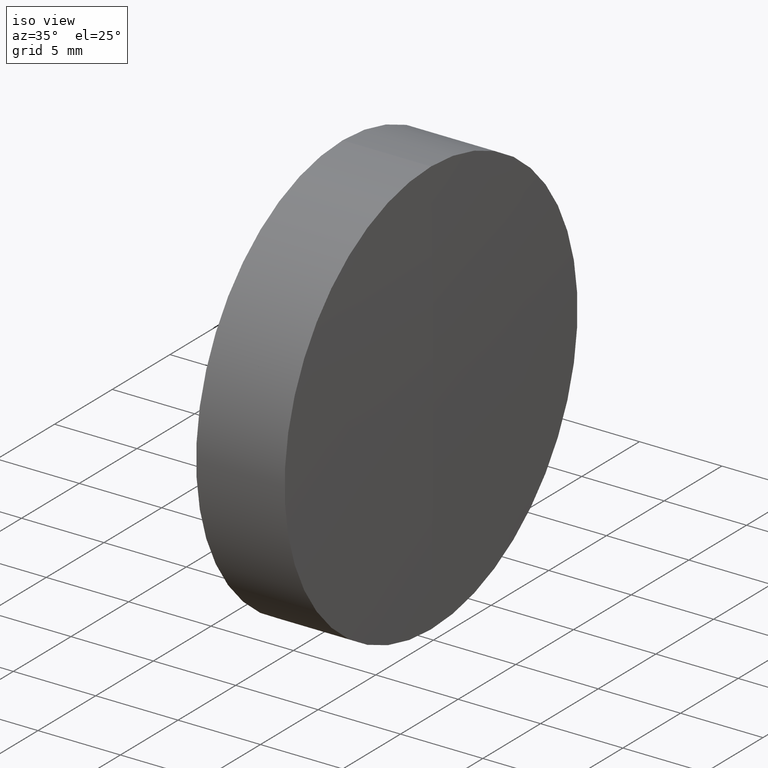
[diagram: clean part render]
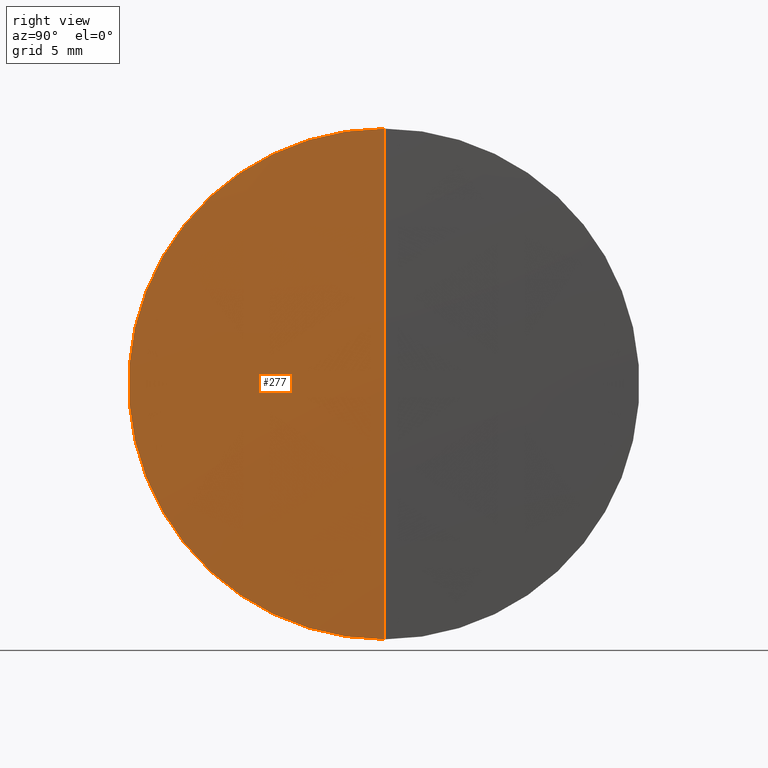
[diagram: tour spotlight — one face highlighted and labeled with its STEP entity id]
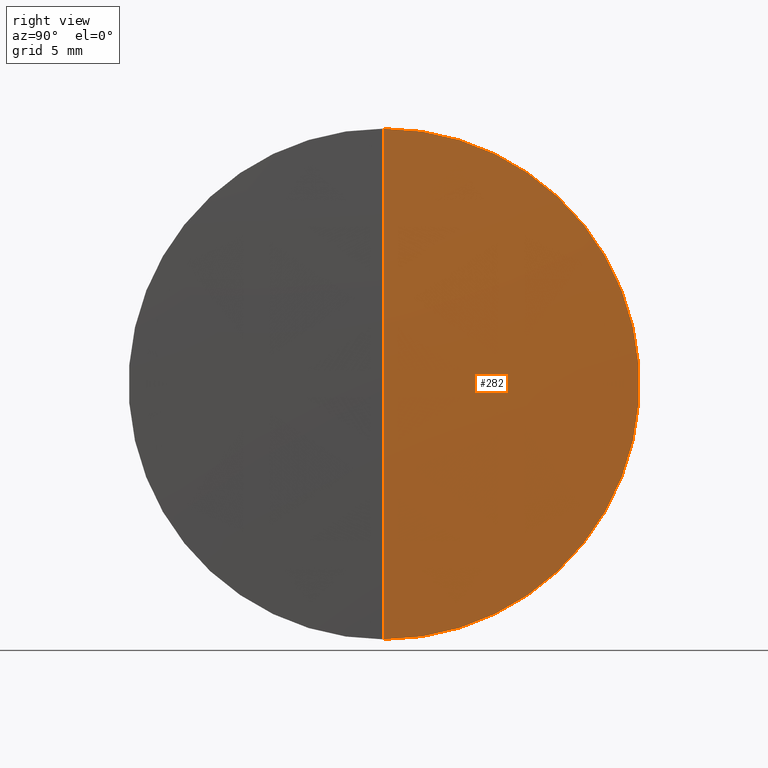
[diagram: tour spotlight — one face highlighted and labeled with its STEP entity id]
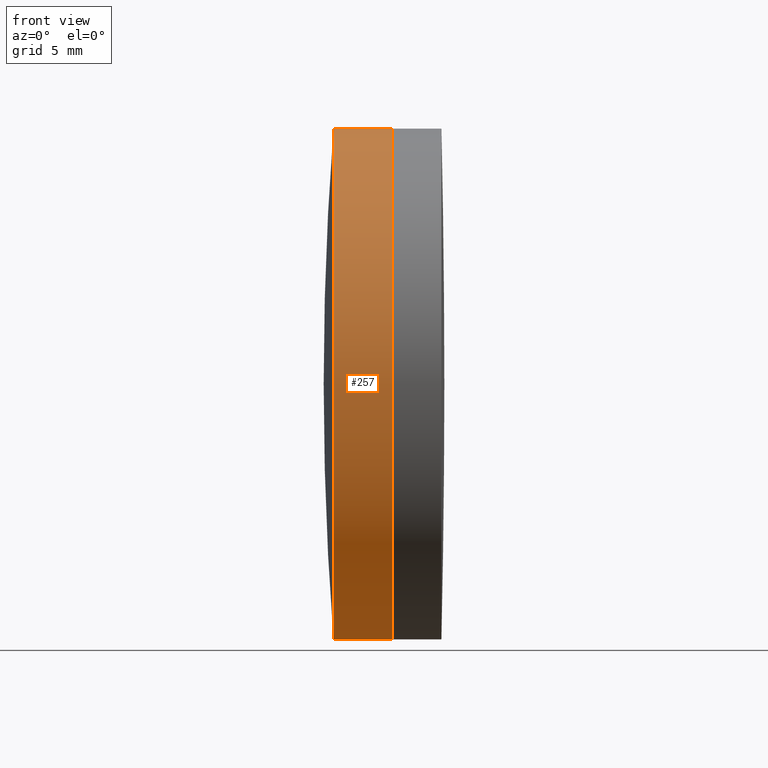
[diagram: tour spotlight — one face highlighted and labeled with its STEP entity id]
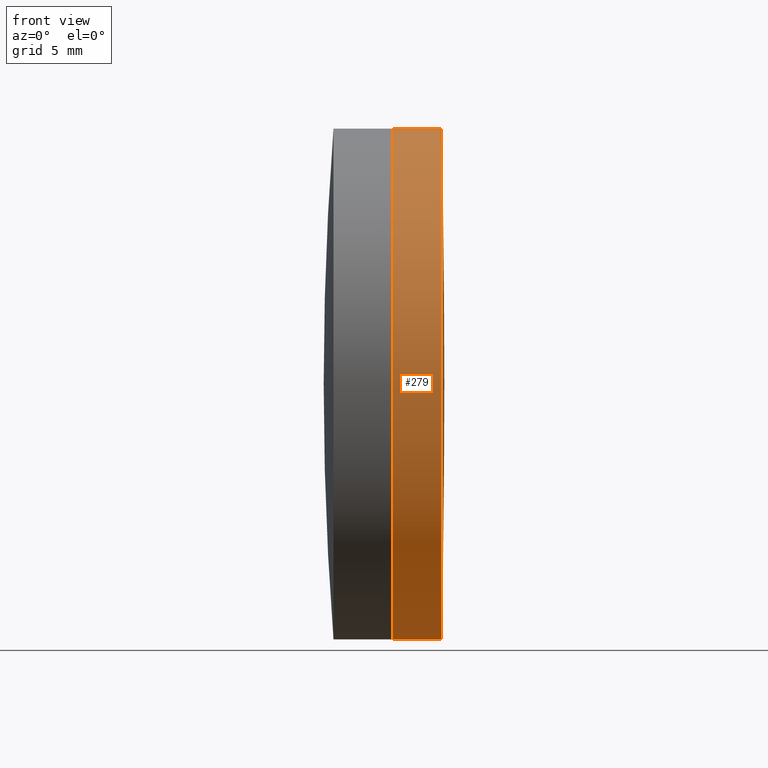
[diagram: tour spotlight — one face highlighted and labeled with its STEP entity id]
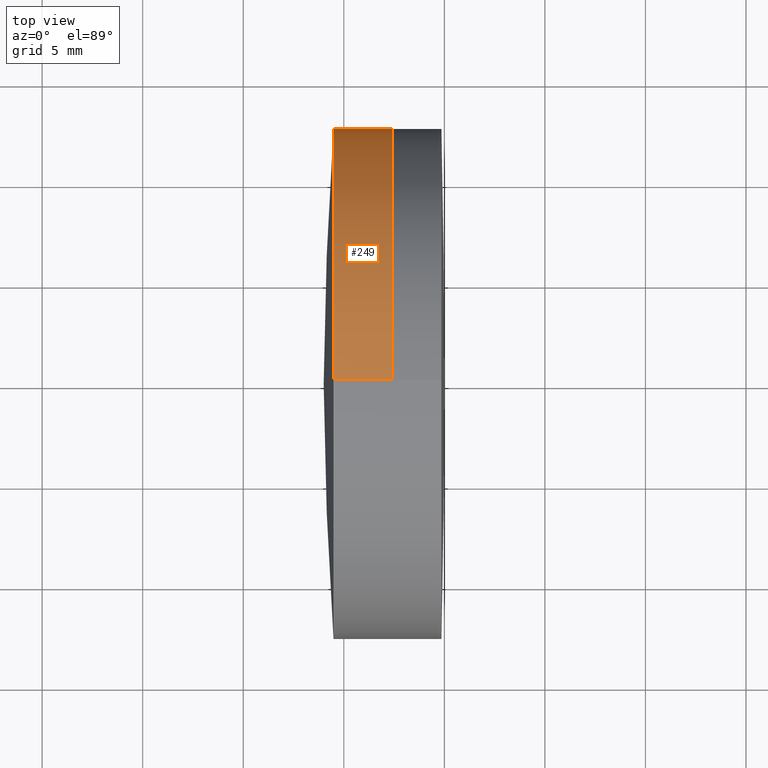
[diagram: tour spotlight — one face highlighted and labeled with its STEP entity id]
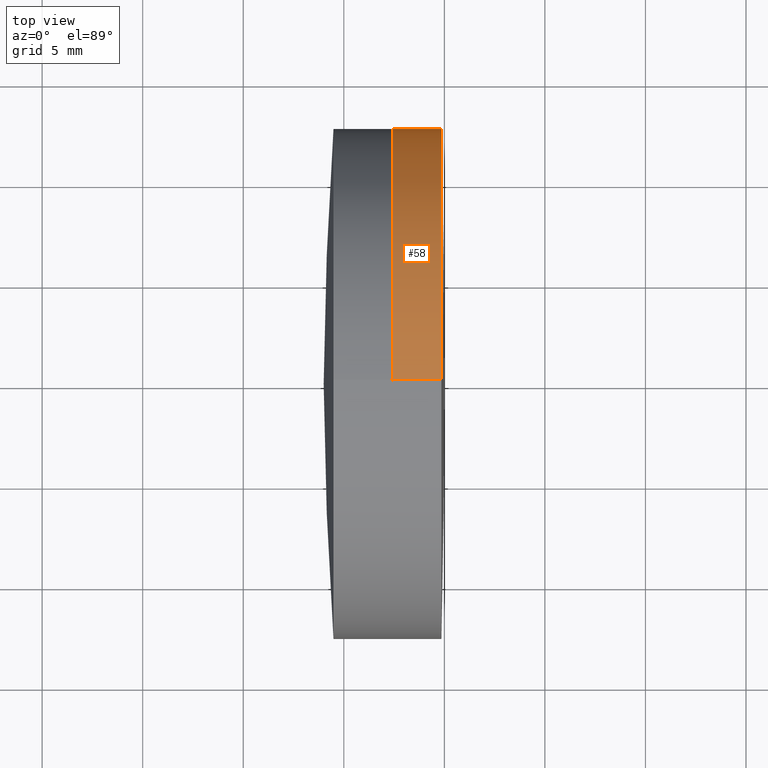
[diagram: tour spotlight — one face highlighted and labeled with its STEP entity id]
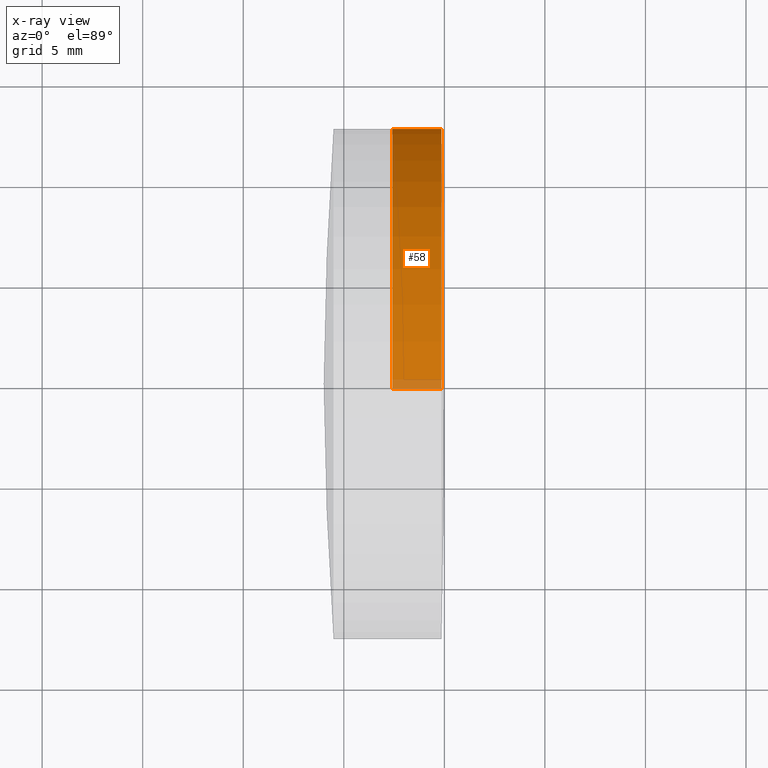
[diagram: x-ray of the same camera — body ghosted, this tour face saturated]
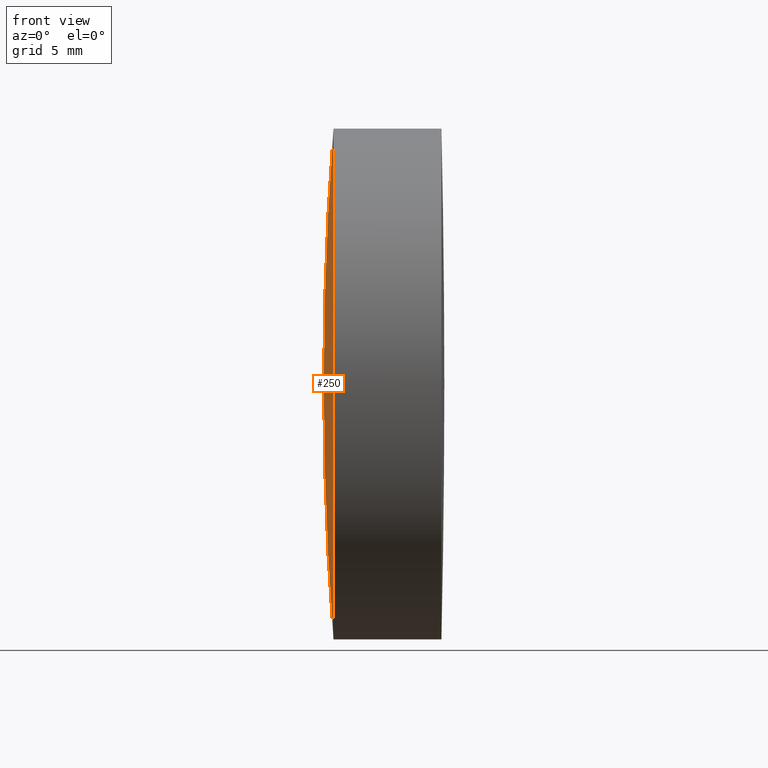
[diagram: tour spotlight — one face highlighted and labeled with its STEP entity id]
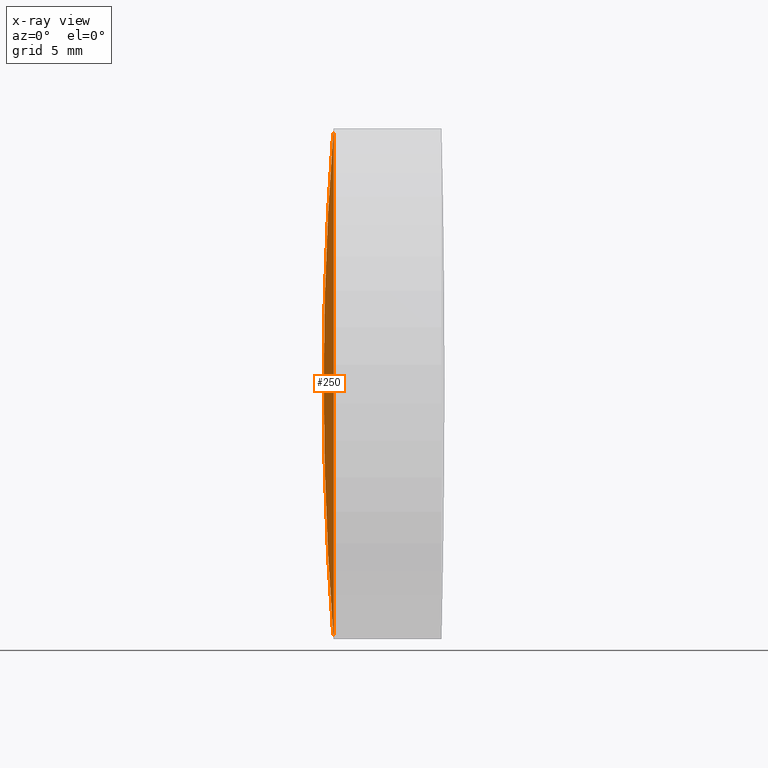
[diagram: x-ray of the same camera — body ghosted, this tour face saturated]
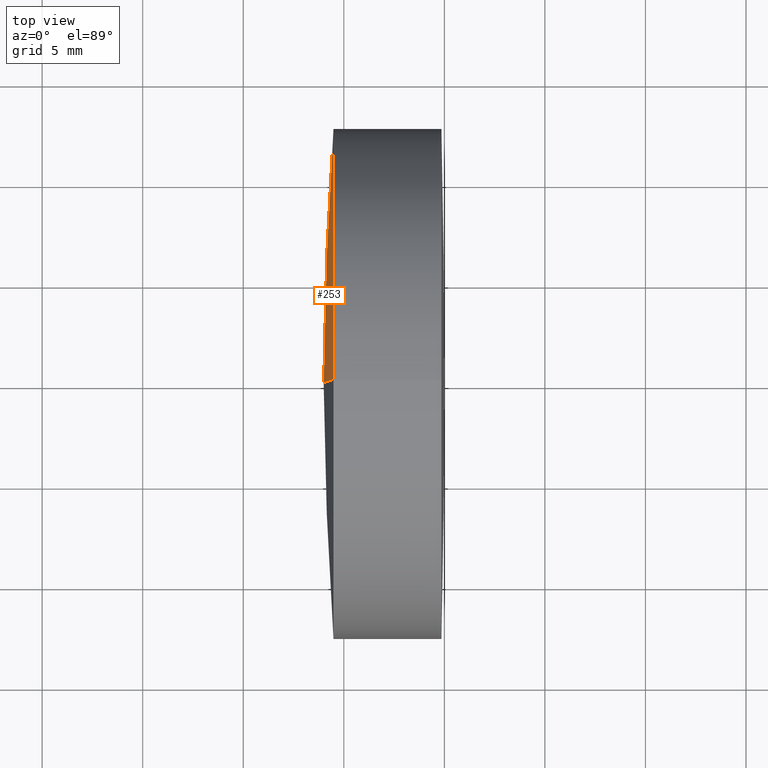
[diagram: tour spotlight — one face highlighted and labeled with its STEP entity id]
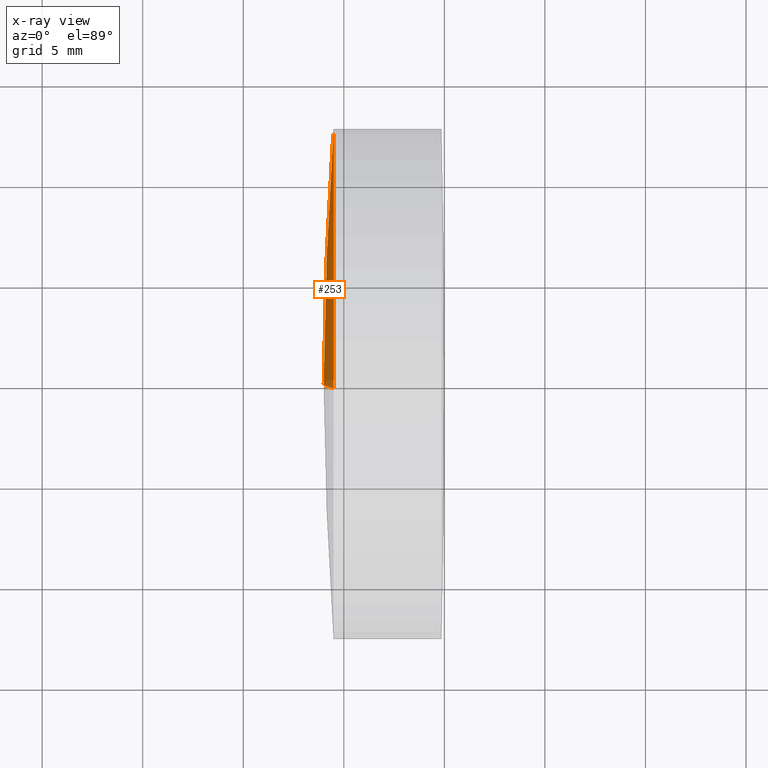
[diagram: x-ray of the same camera — body ghosted, this tour face saturated]
A machine part: a face-by-face anatomy tour. The part has 12 B-rep faces; the first image is the clean iso view, then the 8 largest visible faces are spotlighted one at a time (largest first), each with its STEP entity span.

Face 1 — right view, entity #277. In plain terms, the highlighted spherical surface has radius 557.4 mm.
Definition (entity closure, byte-faithful):
#46 = DIRECTION ( 'NONE',  ( 0.0000000000000000000, 0.0000000000000000000, 1.000000000000000000 ) ) ;
#48 = CARTESIAN_POINT ( 'NONE',  ( -237.4005524568976900, 0.0000000000000000000, 0.0000000000000000000 ) ) ;
#55 = VERTEX_POINT ( 'NONE', #333 ) ;
#59 = CIRCLE ( 'NONE', #263, 557.3999999999999800 ) ;
#63 = AXIS2_PLACEMENT_3D ( 'NONE', #48, #310, #204 ) ;
#84 = ORIENTED_EDGE ( 'NONE', *, *, #148, .F. ) ;
#93 = CARTESIAN_POINT ( 'NONE',  ( 319.8547481011140700, 0.0000000000000000000, 12.69999999999996600 ) ) ;
#101 = ORIENTED_EDGE ( 'NONE', *, *, #110, .T. ) ;
#110 = EDGE_CURVE ( 'NONE', #123, #234, #59, .T. ) ;
#123 = VERTEX_POINT ( 'NONE', #205 ) ;
#148 = EDGE_CURVE ( 'NONE', #123, #55, #181, .T. ) ;
#170 = EDGE_CURVE ( 'NONE', #55, #234, #260, .T. ) ;
#181 = CIRCLE ( 'NONE', #222, 557.3999999999999800 ) ;
#184 = DIRECTION ( 'NONE',  ( 0.0000000000000000000, -1.000000000000000000, 0.0000000000000000000 ) ) ;
#204 = DIRECTION ( 'NONE',  ( 0.0000000000000000000, 0.0000000000000000000, 1.000000000000000000 ) ) ;
#205 = CARTESIAN_POINT ( 'NONE',  ( 319.9994475431023500, 0.0000000000000000000, 3.413090629223673800E-014 ) ) ;
#212 = FACE_OUTER_BOUND ( 'NONE', #237, .T. ) ;
#218 = DIRECTION ( 'NONE',  ( -1.000000000000000000, -0.0000000000000000000, -0.0000000000000000000 ) ) ;
#222 = AXIS2_PLACEMENT_3D ( 'NONE', #319, #291, #238 ) ;
#234 = VERTEX_POINT ( 'NONE', #93 ) ;
#237 = EDGE_LOOP ( 'NONE', ( #84, #101, #264 ) ) ;
#238 = DIRECTION ( 'NONE',  ( 0.0000000000000000000, -1.224646799147353500E-016, 1.000000000000000000 ) ) ;
#260 = CIRCLE ( 'NONE', #329, 12.69999999999996600 ) ;
#263 = AXIS2_PLACEMENT_3D ( 'NONE', #286, #184, #312 ) ;
#264 = ORIENTED_EDGE ( 'NONE', *, *, #170, .F. ) ;
#269 = CARTESIAN_POINT ( 'NONE',  ( 319.8547481011140700, 0.0000000000000000000, 0.0000000000000000000 ) ) ;
#277 = ADVANCED_FACE ( 'NONE', ( #212 ), #306, .T. ) ;
#286 = CARTESIAN_POINT ( 'NONE',  ( -237.4005524568976900, 0.0000000000000000000, 0.0000000000000000000 ) ) ;
#291 = DIRECTION ( 'NONE',  ( -0.0000000000000000000, 1.000000000000000000, 1.224646799147353200E-016 ) ) ;
#306 = SPHERICAL_SURFACE ( 'NONE', #63, 557.3999999999999800 ) ;
#310 = DIRECTION ( 'NONE',  ( 0.0000000000000000000, 1.000000000000000000, 0.0000000000000000000 ) ) ;
#312 = DIRECTION ( 'NONE',  ( 0.0000000000000000000, 0.0000000000000000000, -1.000000000000000000 ) ) ;
#319 = CARTESIAN_POINT ( 'NONE',  ( -237.4005524568976900, 0.0000000000000000000, 0.0000000000000000000 ) ) ;
#329 = AXIS2_PLACEMENT_3D ( 'NONE', #269, #218, #46 ) ;
#333 = CARTESIAN_POINT ( 'NONE',  ( 319.8547481011140700, 1.555301434917136500E-015, -12.69999999999996600 ) ) ;

Face 2 — right view, entity #282. In plain terms, the highlighted spherical surface has radius 557.4 mm.
Definition (entity closure, byte-faithful):
#1 = DIRECTION ( 'NONE',  ( 0.0000000000000000000, 0.0000000000000000000, 1.000000000000000000 ) ) ;
#34 = ORIENTED_EDGE ( 'NONE', *, *, #148, .T. ) ;
#55 = VERTEX_POINT ( 'NONE', #333 ) ;
#59 = CIRCLE ( 'NONE', #263, 557.3999999999999800 ) ;
#65 = ORIENTED_EDGE ( 'NONE', *, *, #110, .F. ) ;
#67 = DIRECTION ( 'NONE',  ( 0.0000000000000000000, 1.000000000000000000, 0.0000000000000000000 ) ) ;
#82 = CIRCLE ( 'NONE', #298, 12.69999999999996600 ) ;
#83 = AXIS2_PLACEMENT_3D ( 'NONE', #256, #67, #1 ) ;
#93 = CARTESIAN_POINT ( 'NONE',  ( 319.8547481011140700, 0.0000000000000000000, 12.69999999999996600 ) ) ;
#97 = FACE_OUTER_BOUND ( 'NONE', #288, .T. ) ;
#110 = EDGE_CURVE ( 'NONE', #123, #234, #59, .T. ) ;
#123 = VERTEX_POINT ( 'NONE', #205 ) ;
#148 = EDGE_CURVE ( 'NONE', #123, #55, #181, .T. ) ;
#158 = SPHERICAL_SURFACE ( 'NONE', #83, 557.3999999999999800 ) ;
#181 = CIRCLE ( 'NONE', #222, 557.3999999999999800 ) ;
#184 = DIRECTION ( 'NONE',  ( 0.0000000000000000000, -1.000000000000000000, 0.0000000000000000000 ) ) ;
#194 = ORIENTED_EDGE ( 'NONE', *, *, #225, .F. ) ;
#205 = CARTESIAN_POINT ( 'NONE',  ( 319.9994475431023500, 0.0000000000000000000, 3.413090629223673800E-014 ) ) ;
#222 = AXIS2_PLACEMENT_3D ( 'NONE', #319, #291, #238 ) ;
#225 = EDGE_CURVE ( 'NONE', #234, #55, #82, .T. ) ;
#232 = DIRECTION ( 'NONE',  ( -1.000000000000000000, -0.0000000000000000000, -0.0000000000000000000 ) ) ;
#234 = VERTEX_POINT ( 'NONE', #93 ) ;
#238 = DIRECTION ( 'NONE',  ( 0.0000000000000000000, -1.224646799147353500E-016, 1.000000000000000000 ) ) ;
#256 = CARTESIAN_POINT ( 'NONE',  ( -237.4005524568976900, 0.0000000000000000000, 0.0000000000000000000 ) ) ;
#263 = AXIS2_PLACEMENT_3D ( 'NONE', #286, #184, #312 ) ;
#282 = ADVANCED_FACE ( 'NONE', ( #97 ), #158, .T. ) ;
#286 = CARTESIAN_POINT ( 'NONE',  ( -237.4005524568976900, 0.0000000000000000000, 0.0000000000000000000 ) ) ;
#287 = CARTESIAN_POINT ( 'NONE',  ( 319.8547481011140700, 0.0000000000000000000, 0.0000000000000000000 ) ) ;
#288 = EDGE_LOOP ( 'NONE', ( #65, #34, #194 ) ) ;
#291 = DIRECTION ( 'NONE',  ( -0.0000000000000000000, 1.000000000000000000, 1.224646799147353200E-016 ) ) ;
#298 = AXIS2_PLACEMENT_3D ( 'NONE', #287, #232, #346 ) ;
#312 = DIRECTION ( 'NONE',  ( 0.0000000000000000000, 0.0000000000000000000, -1.000000000000000000 ) ) ;
#319 = CARTESIAN_POINT ( 'NONE',  ( -237.4005524568976900, 0.0000000000000000000, 0.0000000000000000000 ) ) ;
#333 = CARTESIAN_POINT ( 'NONE',  ( 319.8547481011140700, 1.555301434917136500E-015, -12.69999999999996600 ) ) ;
#346 = DIRECTION ( 'NONE',  ( 0.0000000000000000000, 0.0000000000000000000, 1.000000000000000000 ) ) ;

Face 3 — front view, entity #257. In plain terms, the highlighted cylindrical surface (partial cylindrical patch) has radius 12.7 mm, axis along (-1, -0, -0).
Definition (entity closure, byte-faithful):
#2 = VERTEX_POINT ( 'NONE', #15 ) ;
#5 = CYLINDRICAL_SURFACE ( 'NONE', #127, 12.69999999999999800 ) ;
#11 = EDGE_CURVE ( 'NONE', #280, #38, #28, .T. ) ;
#15 = CARTESIAN_POINT ( 'NONE',  ( 314.4883368067589200, 1.555301434917141800E-015, -12.70000000000002800 ) ) ;
#22 = DIRECTION ( 'NONE',  ( -1.000000000000000000, -0.0000000000000000000, -0.0000000000000000000 ) ) ;
#26 = EDGE_CURVE ( 'NONE', #80, #2, #166, .T. ) ;
#28 = LINE ( 'NONE', #183, #220 ) ;
#38 = VERTEX_POINT ( 'NONE', #66 ) ;
#66 = CARTESIAN_POINT ( 'NONE',  ( 314.4883368067589200, 0.0000000000000000000, 12.70000000000002800 ) ) ;
#80 = VERTEX_POINT ( 'NONE', #331 ) ;
#91 = FACE_OUTER_BOUND ( 'NONE', #206, .T. ) ;
#92 = DIRECTION ( 'NONE',  ( -1.000000000000000000, -0.0000000000000000000, -0.0000000000000000000 ) ) ;
#102 = AXIS2_PLACEMENT_3D ( 'NONE', #262, #318, #332 ) ;
#119 = DIRECTION ( 'NONE',  ( -1.000000000000000000, -0.0000000000000000000, -0.0000000000000000000 ) ) ;
#127 = AXIS2_PLACEMENT_3D ( 'NONE', #191, #321, #324 ) ;
#153 = CARTESIAN_POINT ( 'NONE',  ( 314.4883368067588700, 0.0000000000000000000, 0.0000000000000000000 ) ) ;
#166 = LINE ( 'NONE', #285, #317 ) ;
#183 = CARTESIAN_POINT ( 'NONE',  ( 235.8074506907544200, 0.0000000000000000000, 12.69999999999999800 ) ) ;
#189 = ORIENTED_EDGE ( 'NONE', *, *, #223, .T. ) ;
#191 = CARTESIAN_POINT ( 'NONE',  ( 235.8074506907544200, 0.0000000000000000000, 0.0000000000000000000 ) ) ;
#195 = ORIENTED_EDGE ( 'NONE', *, *, #11, .T. ) ;
#200 = ORIENTED_EDGE ( 'NONE', *, *, #26, .F. ) ;
#206 = EDGE_LOOP ( 'NONE', ( #200, #189, #195, #325 ) ) ;
#211 = CARTESIAN_POINT ( 'NONE',  ( 317.4099599588133700, 0.0000000000000000000, 12.69999999999999800 ) ) ;
#216 = CIRCLE ( 'NONE', #102, 12.69999999999999800 ) ;
#220 = VECTOR ( 'NONE', #119, 1000.000000000000000 ) ;
#223 = EDGE_CURVE ( 'NONE', #80, #280, #216, .T. ) ;
#244 = CIRCLE ( 'NONE', #290, 12.69999999999999800 ) ;
#257 = ADVANCED_FACE ( 'NONE', ( #91 ), #5, .T. ) ;
#262 = CARTESIAN_POINT ( 'NONE',  ( 317.4099599588133700, 0.0000000000000000000, 0.0000000000000000000 ) ) ;
#274 = DIRECTION ( 'NONE',  ( 0.0000000000000000000, 0.0000000000000000000, 1.000000000000000000 ) ) ;
#280 = VERTEX_POINT ( 'NONE', #211 ) ;
#283 = EDGE_CURVE ( 'NONE', #2, #38, #244, .T. ) ;
#285 = CARTESIAN_POINT ( 'NONE',  ( 235.8074506907544200, 1.555301434917138200E-015, -12.69999999999999800 ) ) ;
#290 = AXIS2_PLACEMENT_3D ( 'NONE', #153, #22, #274 ) ;
#317 = VECTOR ( 'NONE', #92, 1000.000000000000000 ) ;
#318 = DIRECTION ( 'NONE',  ( -1.000000000000000000, -0.0000000000000000000, -0.0000000000000000000 ) ) ;
#321 = DIRECTION ( 'NONE',  ( -1.000000000000000000, -0.0000000000000000000, -0.0000000000000000000 ) ) ;
#324 = DIRECTION ( 'NONE',  ( 0.0000000000000000000, 0.0000000000000000000, 1.000000000000000000 ) ) ;
#325 = ORIENTED_EDGE ( 'NONE', *, *, #283, .F. ) ;
#331 = CARTESIAN_POINT ( 'NONE',  ( 317.4099599588133700, 1.555301434917138200E-015, -12.69999999999999800 ) ) ;
#332 = DIRECTION ( 'NONE',  ( 0.0000000000000000000, 0.0000000000000000000, 1.000000000000000000 ) ) ;

Face 4 — front view, entity #279. In plain terms, the highlighted cylindrical surface (partial cylindrical patch) has radius 12.7 mm, axis along (-1, -0, -0).
Definition (entity closure, byte-faithful):
#6 = CARTESIAN_POINT ( 'NONE',  ( 317.4099599588133700, 1.555301434917135900E-015, -12.69999999999998000 ) ) ;
#8 = CIRCLE ( 'NONE', #24, 12.70000000000004000 ) ;
#10 = AXIS2_PLACEMENT_3D ( 'NONE', #174, #118, #316 ) ;
#24 = AXIS2_PLACEMENT_3D ( 'NONE', #128, #293, #239 ) ;
#46 = DIRECTION ( 'NONE',  ( 0.0000000000000000000, 0.0000000000000000000, 1.000000000000000000 ) ) ;
#53 = VERTEX_POINT ( 'NONE', #94 ) ;
#55 = VERTEX_POINT ( 'NONE', #333 ) ;
#70 = VECTOR ( 'NONE', #243, 1000.000000000000000 ) ;
#75 = CARTESIAN_POINT ( 'NONE',  ( -0.5519199926577972300, 0.0000000000000000000, 12.70000000000000300 ) ) ;
#81 = VECTOR ( 'NONE', #151, 1000.000000000000000 ) ;
#93 = CARTESIAN_POINT ( 'NONE',  ( 319.8547481011140700, 0.0000000000000000000, 12.69999999999996600 ) ) ;
#94 = CARTESIAN_POINT ( 'NONE',  ( 317.4099599588133700, 0.0000000000000000000, 12.69999999999997800 ) ) ;
#103 = EDGE_LOOP ( 'NONE', ( #139, #327, #178, #192 ) ) ;
#118 = DIRECTION ( 'NONE',  ( -1.000000000000000000, -0.0000000000000000000, -0.0000000000000000000 ) ) ;
#128 = CARTESIAN_POINT ( 'NONE',  ( 317.4099599588133700, 0.0000000000000000000, 0.0000000000000000000 ) ) ;
#135 = LINE ( 'NONE', #75, #81 ) ;
#139 = ORIENTED_EDGE ( 'NONE', *, *, #347, .F. ) ;
#143 = EDGE_CURVE ( 'NONE', #343, #53, #8, .T. ) ;
#147 = FACE_OUTER_BOUND ( 'NONE', #103, .T. ) ;
#151 = DIRECTION ( 'NONE',  ( -1.000000000000000000, -0.0000000000000000000, -0.0000000000000000000 ) ) ;
#170 = EDGE_CURVE ( 'NONE', #55, #234, #260, .T. ) ;
#174 = CARTESIAN_POINT ( 'NONE',  ( -0.5519199926577972300, 0.0000000000000000000, 0.0000000000000000000 ) ) ;
#175 = EDGE_CURVE ( 'NONE', #234, #53, #135, .T. ) ;
#178 = ORIENTED_EDGE ( 'NONE', *, *, #175, .T. ) ;
#192 = ORIENTED_EDGE ( 'NONE', *, *, #143, .F. ) ;
#193 = CYLINDRICAL_SURFACE ( 'NONE', #10, 12.70000000000000300 ) ;
#218 = DIRECTION ( 'NONE',  ( -1.000000000000000000, -0.0000000000000000000, -0.0000000000000000000 ) ) ;
#227 = LINE ( 'NONE', #335, #70 ) ;
#234 = VERTEX_POINT ( 'NONE', #93 ) ;
#239 = DIRECTION ( 'NONE',  ( 0.0000000000000000000, 0.0000000000000000000, 1.000000000000000000 ) ) ;
#243 = DIRECTION ( 'NONE',  ( -1.000000000000000000, -0.0000000000000000000, -0.0000000000000000000 ) ) ;
#260 = CIRCLE ( 'NONE', #329, 12.69999999999996600 ) ;
#269 = CARTESIAN_POINT ( 'NONE',  ( 319.8547481011140700, 0.0000000000000000000, 0.0000000000000000000 ) ) ;
#279 = ADVANCED_FACE ( 'NONE', ( #147 ), #193, .T. ) ;
#293 = DIRECTION ( 'NONE',  ( -1.000000000000000000, -0.0000000000000000000, -0.0000000000000000000 ) ) ;
#316 = DIRECTION ( 'NONE',  ( 0.0000000000000000000, 0.0000000000000000000, 1.000000000000000000 ) ) ;
#327 = ORIENTED_EDGE ( 'NONE', *, *, #170, .T. ) ;
#329 = AXIS2_PLACEMENT_3D ( 'NONE', #269, #218, #46 ) ;
#333 = CARTESIAN_POINT ( 'NONE',  ( 319.8547481011140700, 1.555301434917136500E-015, -12.69999999999996600 ) ) ;
#335 = CARTESIAN_POINT ( 'NONE',  ( -0.5519199926577972300, 1.555301434917138800E-015, -12.70000000000000300 ) ) ;
#343 = VERTEX_POINT ( 'NONE', #6 ) ;
#347 = EDGE_CURVE ( 'NONE', #55, #343, #227, .T. ) ;

Face 5 — top view, entity #249. In plain terms, the highlighted cylindrical surface (partial cylindrical patch) has radius 12.7 mm, axis along (-1, -0, -0).
Definition (entity closure, byte-faithful):
#2 = VERTEX_POINT ( 'NONE', #15 ) ;
#11 = EDGE_CURVE ( 'NONE', #280, #38, #28, .T. ) ;
#15 = CARTESIAN_POINT ( 'NONE',  ( 314.4883368067589200, 1.555301434917141800E-015, -12.70000000000002800 ) ) ;
#17 = CARTESIAN_POINT ( 'NONE',  ( 317.4099599588133700, 0.0000000000000000000, 0.0000000000000000000 ) ) ;
#21 = CARTESIAN_POINT ( 'NONE',  ( 314.4883368067588700, 0.0000000000000000000, 0.0000000000000000000 ) ) ;
#25 = DIRECTION ( 'NONE',  ( 0.0000000000000000000, 0.0000000000000000000, 1.000000000000000000 ) ) ;
#26 = EDGE_CURVE ( 'NONE', #80, #2, #166, .T. ) ;
#28 = LINE ( 'NONE', #183, #220 ) ;
#38 = VERTEX_POINT ( 'NONE', #66 ) ;
#45 = CIRCLE ( 'NONE', #309, 12.69999999999999800 ) ;
#49 = AXIS2_PLACEMENT_3D ( 'NONE', #17, #314, #210 ) ;
#60 = ORIENTED_EDGE ( 'NONE', *, *, #197, .F. ) ;
#66 = CARTESIAN_POINT ( 'NONE',  ( 314.4883368067589200, 0.0000000000000000000, 12.70000000000002800 ) ) ;
#80 = VERTEX_POINT ( 'NONE', #331 ) ;
#92 = DIRECTION ( 'NONE',  ( -1.000000000000000000, -0.0000000000000000000, -0.0000000000000000000 ) ) ;
#112 = ORIENTED_EDGE ( 'NONE', *, *, #26, .T. ) ;
#114 = EDGE_CURVE ( 'NONE', #280, #80, #117, .T. ) ;
#115 = FACE_OUTER_BOUND ( 'NONE', #272, .T. ) ;
#117 = CIRCLE ( 'NONE', #49, 12.69999999999999800 ) ;
#119 = DIRECTION ( 'NONE',  ( -1.000000000000000000, -0.0000000000000000000, -0.0000000000000000000 ) ) ;
#124 = CARTESIAN_POINT ( 'NONE',  ( 235.8074506907544200, 0.0000000000000000000, 0.0000000000000000000 ) ) ;
#136 = AXIS2_PLACEMENT_3D ( 'NONE', #124, #273, #261 ) ;
#138 = CYLINDRICAL_SURFACE ( 'NONE', #136, 12.69999999999999800 ) ;
#166 = LINE ( 'NONE', #285, #317 ) ;
#169 = ORIENTED_EDGE ( 'NONE', *, *, #114, .T. ) ;
#183 = CARTESIAN_POINT ( 'NONE',  ( 235.8074506907544200, 0.0000000000000000000, 12.69999999999999800 ) ) ;
#197 = EDGE_CURVE ( 'NONE', #38, #2, #45, .T. ) ;
#201 = ORIENTED_EDGE ( 'NONE', *, *, #11, .F. ) ;
#210 = DIRECTION ( 'NONE',  ( 0.0000000000000000000, 0.0000000000000000000, 1.000000000000000000 ) ) ;
#211 = CARTESIAN_POINT ( 'NONE',  ( 317.4099599588133700, 0.0000000000000000000, 12.69999999999999800 ) ) ;
#220 = VECTOR ( 'NONE', #119, 1000.000000000000000 ) ;
#249 = ADVANCED_FACE ( 'NONE', ( #115 ), #138, .T. ) ;
#261 = DIRECTION ( 'NONE',  ( 0.0000000000000000000, 0.0000000000000000000, 1.000000000000000000 ) ) ;
#267 = DIRECTION ( 'NONE',  ( -1.000000000000000000, -0.0000000000000000000, -0.0000000000000000000 ) ) ;
#272 = EDGE_LOOP ( 'NONE', ( #169, #112, #60, #201 ) ) ;
#273 = DIRECTION ( 'NONE',  ( -1.000000000000000000, -0.0000000000000000000, -0.0000000000000000000 ) ) ;
#280 = VERTEX_POINT ( 'NONE', #211 ) ;
#285 = CARTESIAN_POINT ( 'NONE',  ( 235.8074506907544200, 1.555301434917138200E-015, -12.69999999999999800 ) ) ;
#309 = AXIS2_PLACEMENT_3D ( 'NONE', #21, #267, #25 ) ;
#314 = DIRECTION ( 'NONE',  ( -1.000000000000000000, -0.0000000000000000000, -0.0000000000000000000 ) ) ;
#317 = VECTOR ( 'NONE', #92, 1000.000000000000000 ) ;
#331 = CARTESIAN_POINT ( 'NONE',  ( 317.4099599588133700, 1.555301434917138200E-015, -12.69999999999999800 ) ) ;

Face 6 — top view, entity #58. An x-ray twin of the same camera follows (body ghosted, this face saturated) — the face is partly hidden behind the body. In plain terms, the highlighted cylindrical surface (partial cylindrical patch) has radius 12.7 mm, axis along (-1, -0, -0).
Definition (entity closure, byte-faithful):
#6 = CARTESIAN_POINT ( 'NONE',  ( 317.4099599588133700, 1.555301434917135900E-015, -12.69999999999998000 ) ) ;
#13 = CYLINDRICAL_SURFACE ( 'NONE', #305, 12.70000000000000300 ) ;
#35 = DIRECTION ( 'NONE',  ( 0.0000000000000000000, 0.0000000000000000000, 1.000000000000000000 ) ) ;
#53 = VERTEX_POINT ( 'NONE', #94 ) ;
#55 = VERTEX_POINT ( 'NONE', #333 ) ;
#58 = ADVANCED_FACE ( 'NONE', ( #125 ), #13, .T. ) ;
#70 = VECTOR ( 'NONE', #243, 1000.000000000000000 ) ;
#75 = CARTESIAN_POINT ( 'NONE',  ( -0.5519199926577972300, 0.0000000000000000000, 12.70000000000000300 ) ) ;
#76 = DIRECTION ( 'NONE',  ( 0.0000000000000000000, 0.0000000000000000000, 1.000000000000000000 ) ) ;
#81 = VECTOR ( 'NONE', #151, 1000.000000000000000 ) ;
#82 = CIRCLE ( 'NONE', #298, 12.69999999999996600 ) ;
#88 = ORIENTED_EDGE ( 'NONE', *, *, #225, .T. ) ;
#93 = CARTESIAN_POINT ( 'NONE',  ( 319.8547481011140700, 0.0000000000000000000, 12.69999999999996600 ) ) ;
#94 = CARTESIAN_POINT ( 'NONE',  ( 317.4099599588133700, 0.0000000000000000000, 12.69999999999997800 ) ) ;
#113 = ORIENTED_EDGE ( 'NONE', *, *, #141, .F. ) ;
#125 = FACE_OUTER_BOUND ( 'NONE', #126, .T. ) ;
#126 = EDGE_LOOP ( 'NONE', ( #88, #266, #113, #133 ) ) ;
#133 = ORIENTED_EDGE ( 'NONE', *, *, #175, .F. ) ;
#135 = LINE ( 'NONE', #75, #81 ) ;
#141 = EDGE_CURVE ( 'NONE', #53, #343, #251, .T. ) ;
#151 = DIRECTION ( 'NONE',  ( -1.000000000000000000, -0.0000000000000000000, -0.0000000000000000000 ) ) ;
#175 = EDGE_CURVE ( 'NONE', #234, #53, #135, .T. ) ;
#190 = CARTESIAN_POINT ( 'NONE',  ( 317.4099599588133700, 0.0000000000000000000, 0.0000000000000000000 ) ) ;
#225 = EDGE_CURVE ( 'NONE', #234, #55, #82, .T. ) ;
#227 = LINE ( 'NONE', #335, #70 ) ;
#228 = CARTESIAN_POINT ( 'NONE',  ( -0.5519199926577972300, 0.0000000000000000000, 0.0000000000000000000 ) ) ;
#232 = DIRECTION ( 'NONE',  ( -1.000000000000000000, -0.0000000000000000000, -0.0000000000000000000 ) ) ;
#234 = VERTEX_POINT ( 'NONE', #93 ) ;
#243 = DIRECTION ( 'NONE',  ( -1.000000000000000000, -0.0000000000000000000, -0.0000000000000000000 ) ) ;
#251 = CIRCLE ( 'NONE', #323, 12.70000000000004000 ) ;
#266 = ORIENTED_EDGE ( 'NONE', *, *, #347, .T. ) ;
#287 = CARTESIAN_POINT ( 'NONE',  ( 319.8547481011140700, 0.0000000000000000000, 0.0000000000000000000 ) ) ;
#298 = AXIS2_PLACEMENT_3D ( 'NONE', #287, #232, #346 ) ;
#305 = AXIS2_PLACEMENT_3D ( 'NONE', #228, #307, #35 ) ;
#307 = DIRECTION ( 'NONE',  ( -1.000000000000000000, -0.0000000000000000000, -0.0000000000000000000 ) ) ;
#320 = DIRECTION ( 'NONE',  ( -1.000000000000000000, -0.0000000000000000000, -0.0000000000000000000 ) ) ;
#323 = AXIS2_PLACEMENT_3D ( 'NONE', #190, #320, #76 ) ;
#333 = CARTESIAN_POINT ( 'NONE',  ( 319.8547481011140700, 1.555301434917136500E-015, -12.69999999999996600 ) ) ;
#335 = CARTESIAN_POINT ( 'NONE',  ( -0.5519199926577972300, 1.555301434917138800E-015, -12.70000000000000300 ) ) ;
#343 = VERTEX_POINT ( 'NONE', #6 ) ;
#346 = DIRECTION ( 'NONE',  ( 0.0000000000000000000, 0.0000000000000000000, 1.000000000000000000 ) ) ;
#347 = EDGE_CURVE ( 'NONE', #55, #343, #227, .T. ) ;

Face 7 — front view, entity #250. An x-ray twin of the same camera follows (body ghosted, this face saturated) — the face is partly hidden behind the body. In plain terms, the highlighted spherical surface has radius 165.2 mm.
Definition (entity closure, byte-faithful):
#2 = VERTEX_POINT ( 'NONE', #15 ) ;
#15 = CARTESIAN_POINT ( 'NONE',  ( 314.4883368067589200, 1.555301434917141800E-015, -12.70000000000002800 ) ) ;
#22 = DIRECTION ( 'NONE',  ( -1.000000000000000000, -0.0000000000000000000, -0.0000000000000000000 ) ) ;
#23 = DIRECTION ( 'NONE',  ( 0.0000000000000000000, -1.000000000000000000, 0.0000000000000000000 ) ) ;
#38 = VERTEX_POINT ( 'NONE', #66 ) ;
#39 = CARTESIAN_POINT ( 'NONE',  ( 479.1994475431023400, 0.0000000000000000000, -8.505434843321373200E-016 ) ) ;
#43 = DIRECTION ( 'NONE',  ( 0.0000000000000000000, -1.224646799147353200E-016, 1.000000000000000000 ) ) ;
#52 = DIRECTION ( 'NONE',  ( -0.0000000000000000000, 1.000000000000000000, 1.224646799147353200E-016 ) ) ;
#66 = CARTESIAN_POINT ( 'NONE',  ( 314.4883368067589200, 0.0000000000000000000, 12.70000000000002800 ) ) ;
#71 = EDGE_LOOP ( 'NONE', ( #130, #107, #156 ) ) ;
#78 = CARTESIAN_POINT ( 'NONE',  ( 479.1994475431023400, 0.0000000000000000000, -8.505434843321373200E-016 ) ) ;
#100 = CIRCLE ( 'NONE', #172, 165.2000000000000200 ) ;
#107 = ORIENTED_EDGE ( 'NONE', *, *, #283, .T. ) ;
#130 = ORIENTED_EDGE ( 'NONE', *, *, #252, .F. ) ;
#134 = AXIS2_PLACEMENT_3D ( 'NONE', #344, #23, #215 ) ;
#142 = DIRECTION ( 'NONE',  ( 0.0000000000000000000, 1.000000000000000000, 0.0000000000000000000 ) ) ;
#145 = EDGE_CURVE ( 'NONE', #38, #160, #292, .T. ) ;
#153 = CARTESIAN_POINT ( 'NONE',  ( 314.4883368067588700, 0.0000000000000000000, 0.0000000000000000000 ) ) ;
#154 = DIRECTION ( 'NONE',  ( 0.0000000000000000000, 0.0000000000000000000, 1.000000000000000000 ) ) ;
#156 = ORIENTED_EDGE ( 'NONE', *, *, #145, .T. ) ;
#160 = VERTEX_POINT ( 'NONE', #270 ) ;
#172 = AXIS2_PLACEMENT_3D ( 'NONE', #78, #52, #43 ) ;
#215 = DIRECTION ( 'NONE',  ( 0.0000000000000000000, 0.0000000000000000000, -1.000000000000000000 ) ) ;
#244 = CIRCLE ( 'NONE', #290, 12.69999999999999800 ) ;
#250 = ADVANCED_FACE ( 'NONE', ( #322 ), #341, .T. ) ;
#252 = EDGE_CURVE ( 'NONE', #2, #160, #100, .T. ) ;
#270 = CARTESIAN_POINT ( 'NONE',  ( 313.9994475431023500, 0.0000000000000000000, 9.265039076625000400E-015 ) ) ;
#274 = DIRECTION ( 'NONE',  ( 0.0000000000000000000, 0.0000000000000000000, 1.000000000000000000 ) ) ;
#283 = EDGE_CURVE ( 'NONE', #2, #38, #244, .T. ) ;
#290 = AXIS2_PLACEMENT_3D ( 'NONE', #153, #22, #274 ) ;
#292 = CIRCLE ( 'NONE', #134, 165.2000000000000200 ) ;
#294 = AXIS2_PLACEMENT_3D ( 'NONE', #39, #142, #154 ) ;
#322 = FACE_OUTER_BOUND ( 'NONE', #71, .T. ) ;
#341 = SPHERICAL_SURFACE ( 'NONE', #294, 165.2000000000000200 ) ;
#344 = CARTESIAN_POINT ( 'NONE',  ( 479.1994475431023400, 0.0000000000000000000, -8.505434843321373200E-016 ) ) ;

Face 8 — top view, entity #253. An x-ray twin of the same camera follows (body ghosted, this face saturated) — the face is partly hidden behind the body. In plain terms, the highlighted spherical surface has radius 165.2 mm.
Definition (entity closure, byte-faithful):
#2 = VERTEX_POINT ( 'NONE', #15 ) ;
#15 = CARTESIAN_POINT ( 'NONE',  ( 314.4883368067589200, 1.555301434917141800E-015, -12.70000000000002800 ) ) ;
#21 = CARTESIAN_POINT ( 'NONE',  ( 314.4883368067588700, 0.0000000000000000000, 0.0000000000000000000 ) ) ;
#23 = DIRECTION ( 'NONE',  ( 0.0000000000000000000, -1.000000000000000000, 0.0000000000000000000 ) ) ;
#25 = DIRECTION ( 'NONE',  ( 0.0000000000000000000, 0.0000000000000000000, 1.000000000000000000 ) ) ;
#38 = VERTEX_POINT ( 'NONE', #66 ) ;
#41 = ORIENTED_EDGE ( 'NONE', *, *, #145, .F. ) ;
#43 = DIRECTION ( 'NONE',  ( 0.0000000000000000000, -1.224646799147353200E-016, 1.000000000000000000 ) ) ;
#45 = CIRCLE ( 'NONE', #309, 12.69999999999999800 ) ;
#52 = DIRECTION ( 'NONE',  ( -0.0000000000000000000, 1.000000000000000000, 1.224646799147353200E-016 ) ) ;
#54 = FACE_OUTER_BOUND ( 'NONE', #315, .T. ) ;
#61 = AXIS2_PLACEMENT_3D ( 'NONE', #242, #259, #95 ) ;
#66 = CARTESIAN_POINT ( 'NONE',  ( 314.4883368067589200, 0.0000000000000000000, 12.70000000000002800 ) ) ;
#78 = CARTESIAN_POINT ( 'NONE',  ( 479.1994475431023400, 0.0000000000000000000, -8.505434843321373200E-016 ) ) ;
#85 = ORIENTED_EDGE ( 'NONE', *, *, #252, .T. ) ;
#95 = DIRECTION ( 'NONE',  ( 0.0000000000000000000, 0.0000000000000000000, 1.000000000000000000 ) ) ;
#100 = CIRCLE ( 'NONE', #172, 165.2000000000000200 ) ;
#134 = AXIS2_PLACEMENT_3D ( 'NONE', #344, #23, #215 ) ;
#145 = EDGE_CURVE ( 'NONE', #38, #160, #292, .T. ) ;
#160 = VERTEX_POINT ( 'NONE', #270 ) ;
#172 = AXIS2_PLACEMENT_3D ( 'NONE', #78, #52, #43 ) ;
#197 = EDGE_CURVE ( 'NONE', #38, #2, #45, .T. ) ;
#215 = DIRECTION ( 'NONE',  ( 0.0000000000000000000, 0.0000000000000000000, -1.000000000000000000 ) ) ;
#242 = CARTESIAN_POINT ( 'NONE',  ( 479.1994475431023400, 0.0000000000000000000, -8.505434843321373200E-016 ) ) ;
#245 = ORIENTED_EDGE ( 'NONE', *, *, #197, .T. ) ;
#252 = EDGE_CURVE ( 'NONE', #2, #160, #100, .T. ) ;
#253 = ADVANCED_FACE ( 'NONE', ( #54 ), #301, .T. ) ;
#259 = DIRECTION ( 'NONE',  ( 0.0000000000000000000, 1.000000000000000000, 0.0000000000000000000 ) ) ;
#267 = DIRECTION ( 'NONE',  ( -1.000000000000000000, -0.0000000000000000000, -0.0000000000000000000 ) ) ;
#270 = CARTESIAN_POINT ( 'NONE',  ( 313.9994475431023500, 0.0000000000000000000, 9.265039076625000400E-015 ) ) ;
#292 = CIRCLE ( 'NONE', #134, 165.2000000000000200 ) ;
#301 = SPHERICAL_SURFACE ( 'NONE', #61, 165.2000000000000200 ) ;
#309 = AXIS2_PLACEMENT_3D ( 'NONE', #21, #267, #25 ) ;
#315 = EDGE_LOOP ( 'NONE', ( #245, #85, #41 ) ) ;
#344 = CARTESIAN_POINT ( 'NONE',  ( 479.1994475431023400, 0.0000000000000000000, -8.505434843321373200E-016 ) ) ;